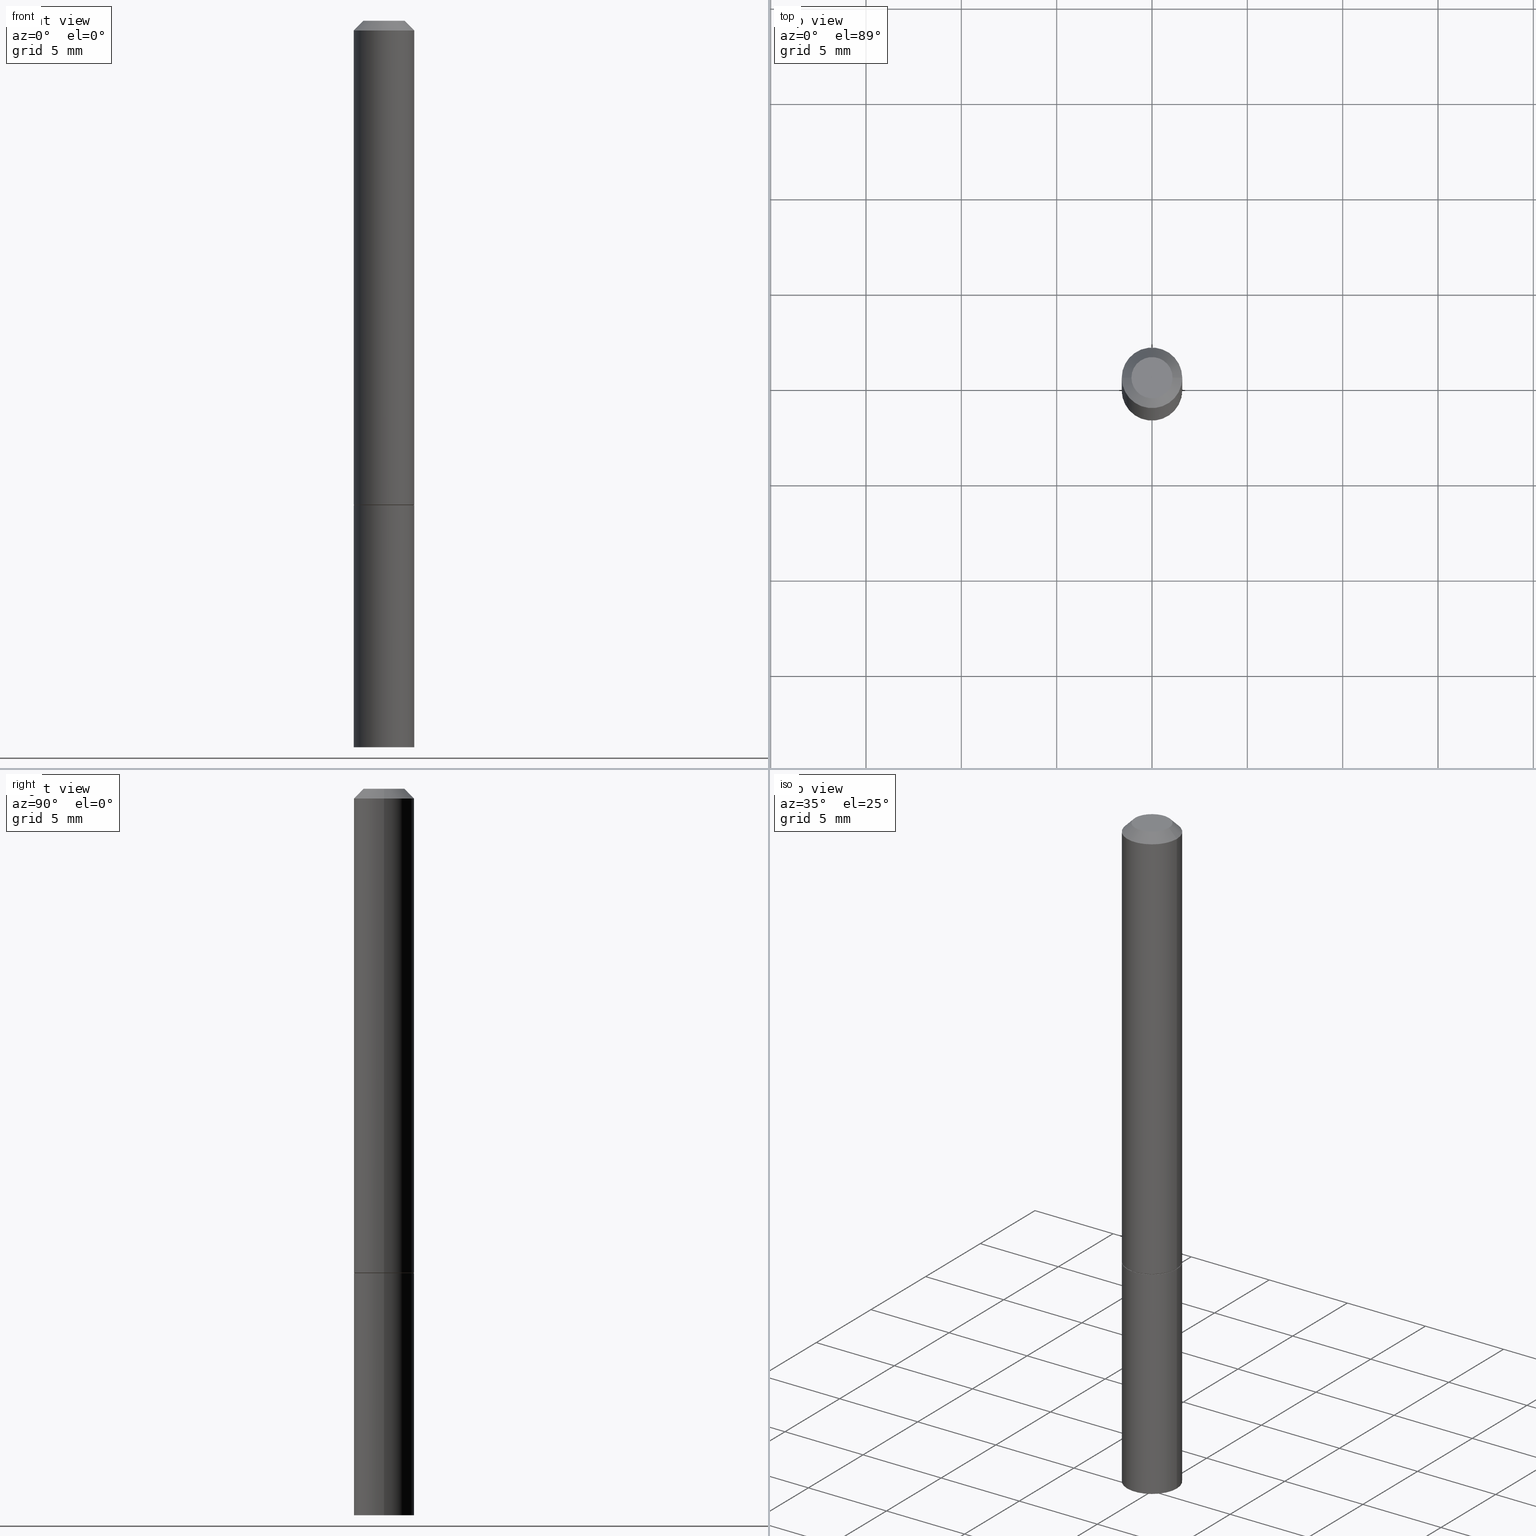
[diagram: canonical four-view strip — front | top / right | iso, engineering-drawing reading convention]
A machine part, canonical four-view strip (front | top / right | iso — engineering-drawing reading convention). The complete STEP part file that produces these views, byte-faithful:
ISO-10303-21;
HEADER;
FILE_DESCRIPTION (( 'STEP AP203' ),
    '1' );
FILE_NAME ('30198.STEP',
    '2023-03-21T20:26:01',
    ( '' ),
    ( '' ),
    'SwSTEP 2.0',
    'SolidWorks 2022',
    '' );
FILE_SCHEMA (( 'CONFIG_CONTROL_DESIGN' ));
ENDSEC;

DATA;
#1 = EDGE_LOOP ( 'NONE', ( #99, #8 ) ) ;
#2 = DIRECTION ( 'NONE',  ( 0.000000000000000000, 0.000000000000000000, 1.000000000000000000 ) ) ;
#3 = ORIENTED_EDGE ( 'NONE', *, *, #133, .T. ) ;
#4 = DIRECTION ( 'NONE',  ( 1.000000000000000000, -6.982962677686269866E-15, 0.000000000000000000 ) ) ;
#5 = ORIENTED_EDGE ( 'NONE', *, *, #77, .F. ) ;
#6 = DIRECTION ( 'NONE',  ( -2.438088387897960049E-29, 3.491481338843145188E-15, 1.000000000000000000 ) ) ;
#7 = VECTOR ( 'NONE', #194, 39.37007874015748143 ) ;
#8 = ORIENTED_EDGE ( 'NONE', *, *, #285, .T. ) ;
#9 = EDGE_CURVE ( 'NONE', #36, #324, #16, .T. ) ;
#10 = EDGE_LOOP ( 'NONE', ( #134, #287, #277, #39 ) ) ;
#11 = DATE_AND_TIME ( #138, #205 ) ;
#12 = DIRECTION ( 'NONE',  ( 2.445468806185136597E-29, -3.491481338843145583E-15, -1.000000000000000000 ) ) ;
#13 = CARTESIAN_POINT ( 'NONE',  ( 0.06250000000000000000, -4.364351673553916694E-16, 3.047610484872459871E-30 ) ) ;
#14 = CONICAL_SURFACE ( 'NONE', #35, 751.2258538476485228, 1.518436449235072372 ) ;
#15 = DATE_TIME_ROLE ( 'classification_date' ) ;
#16 = LINE ( 'NONE', #13, #184 ) ;
#17 = CARTESIAN_POINT ( 'NONE',  ( -0.06250000000000000000, -3.920262463703869855E-15, -1.000000000000000222 ) ) ;
#18 = FACE_OUTER_BOUND ( 'NONE', #234, .T. ) ;
#19 = DIRECTION ( 'NONE',  ( 1.000000000000000000, -6.982962677686269866E-15, 0.000000000000000000 ) ) ;
#20 = VERTEX_POINT ( 'NONE', #140 ) ;
#21 = EDGE_CURVE ( 'NONE', #308, #20, #150, .T. ) ;
#22 = CIRCLE ( 'NONE', #379, 0.06249999999999988898 ) ;
#23 = FACE_OUTER_BOUND ( 'NONE', #1, .T. ) ;
#24 = EDGE_CURVE ( 'NONE', #130, #369, #319, .T. ) ;
#25 = CARTESIAN_POINT ( 'NONE',  ( 3.668203209277704895E-29, -5.237222008264718177E-15, -1.500000000000000222 ) ) ;
#26 = CYLINDRICAL_SURFACE ( 'NONE', #161, 0.06250000000000000000 ) ;
#27 = CC_DESIGN_PERSON_AND_ORGANIZATION_ASSIGNMENT ( #62, #283, ( #29 ) ) ;
#28 = PERSON_AND_ORGANIZATION ( #127, #239 ) ;
#29 = SECURITY_CLASSIFICATION ( '', '', #331 ) ;
#30 =( CONVERSION_BASED_UNIT ( 'INCH', #32 ) LENGTH_UNIT ( ) NAMED_UNIT ( #270 ) );
#31 = EDGE_CURVE ( 'NONE', #253, #79, #291, .T. ) ;
#32 = LENGTH_MEASURE_WITH_UNIT ( LENGTH_MEASURE( 0.02539999999999999897 ), #100 );
#33 = PRODUCT_DEFINITION ( 'UNKNOWN', '', #167, #94 ) ;
#34 = FACE_OUTER_BOUND ( 'NONE', #190, .T. ) ;
#35 = AXIS2_PLACEMENT_3D ( 'NONE', #263, #137, #82 ) ;
#36 = VERTEX_POINT ( 'NONE', #112 ) ;
#37 = MECHANICAL_CONTEXT ( 'NONE', #148, 'mechanical' ) ;
#38 = PRODUCT_DEFINITION_SHAPE ( 'NONE', 'NONE',  #33 ) ;
#39 = ORIENTED_EDGE ( 'NONE', *, *, #328, .F. ) ;
#40 = CARTESIAN_POINT ( 'NONE',  ( 0.06249999999999995143, -4.364351673553913243E-16, 3.047610484872457418E-30 ) ) ;
#41 = VECTOR ( 'NONE', #320, 39.37007874015748143 ) ;
#42 = AXIS2_PLACEMENT_3D ( 'NONE', #84, #207, #323 ) ;
#43 = ORIENTED_EDGE ( 'NONE', *, *, #388, .F. ) ;
#44 = CARTESIAN_POINT ( 'NONE',  ( 0.06250000000000000000, -3.924425024859694639E-15, -0.9990000000000002212 ) ) ;
#45 = ORIENTED_EDGE ( 'NONE', *, *, #131, .F. ) ;
#46 = LINE ( 'NONE', #111, #212 ) ;
#47 = ORIENTED_EDGE ( 'NONE', *, *, #9, .T. ) ;
#48 = ADVANCED_FACE ( 'NONE', ( #196 ), #254, .F. ) ;
#49 = DIRECTION ( 'NONE',  ( 1.000000000000000000, -6.982962677686266711E-15, 4.876176775795935793E-29 ) ) ;
#50 = ORIENTED_EDGE ( 'NONE', *, *, #31, .T. ) ;
#51 = LOCAL_TIME ( 16, 26, 1.000000000000000000, #102 ) ;
#52 = PLANE ( 'NONE',  #355 ) ;
#53 = DIRECTION ( 'NONE',  ( -2.445468806185136597E-29, 3.491481338843145583E-15, 1.000000000000000000 ) ) ;
#54 = ADVANCED_FACE ( 'NONE', ( #18 ), #14, .F. ) ;
#55 = FACE_OUTER_BOUND ( 'NONE', #101, .T. ) ;
#56 = DIRECTION ( 'NONE',  ( 1.000000000000000000, -6.982962677686267499E-15, 4.876176775795935232E-29 ) ) ;
#57 = DIRECTION ( 'NONE',  ( -2.445468806185136597E-29, 3.491481338843145583E-15, 1.000000000000000000 ) ) ;
#58 = CC_DESIGN_APPROVAL ( #271, ( #29 ) ) ;
#59 = FACE_OUTER_BOUND ( 'NONE', #275, .T. ) ;
#60 = DIRECTION ( 'NONE',  ( 1.000000000000000000, -6.982962677686266711E-15, 0.000000000000000000 ) ) ;
#61 = CARTESIAN_POINT ( 'NONE',  ( 2.443023337378951835E-29, -3.487989857504302970E-15, -0.9990000000000002212 ) ) ;
#62 = PERSON_AND_ORGANIZATION ( #127, #239 ) ;
#63 = VECTOR ( 'NONE', #157, 39.37007874015748143 ) ;
#64 = APPROVAL_STATUS ( 'not_yet_approved' ) ;
#65 = EDGE_CURVE ( 'NONE', #369, #253, #258, .T. ) ;
#66 = APPROVAL_STATUS ( 'not_yet_approved' ) ;
#67 = DATE_AND_TIME ( #362, #51 ) ;
#68 = AXIS2_PLACEMENT_3D ( 'NONE', #370, #85, #145 ) ;
#69 = ORIENTED_EDGE ( 'NONE', *, *, #118, .T. ) ;
#70 = APPROVAL_ROLE ( '' ) ;
#71 = ORIENTED_EDGE ( 'NONE', *, *, #24, .T. ) ;
#72 = EDGE_CURVE ( 'NONE', #324, #226, #347, .T. ) ;
#73 = ORIENTED_EDGE ( 'NONE', *, *, #154, .T. ) ;
#74 = FACE_OUTER_BOUND ( 'NONE', #201, .T. ) ;
#75 = AXIS2_PLACEMENT_3D ( 'NONE', #350, #80, #49 ) ;
#76 = ORIENTED_EDGE ( 'NONE', *, *, #154, .F. ) ;
#77 = EDGE_CURVE ( 'NONE', #130, #206, #372, .T. ) ;
#78 = EDGE_CURVE ( 'NONE', #371, #315, #265, .T. ) ;
#79 = VERTEX_POINT ( 'NONE', #164 ) ;
#80 = DIRECTION ( 'NONE',  ( -2.445468806185136597E-29, 3.491481338843145583E-15, 1.000000000000000000 ) ) ;
#81 = ORIENTED_EDGE ( 'NONE', *, *, #78, .T. ) ;
#82 = DIRECTION ( 'NONE',  ( -1.000000000000000000, 6.982962677686266711E-15, 0.000000000000000000 ) ) ;
#83 = CC_DESIGN_APPROVAL ( #358, ( #167 ) ) ;
#84 = CARTESIAN_POINT ( 'NONE',  ( 4.364351673554160748E-16, 0.06249999999999650974, -1.000000000000000444 ) ) ;
#85 = DIRECTION ( 'NONE',  ( -2.445468806185136597E-29, 3.491481338843145583E-15, 1.000000000000000000 ) ) ;
#86 = EDGE_CURVE ( 'NONE', #226, #324, #288, .T. ) ;
#87 = DIRECTION ( 'NONE',  ( -2.445468806185136597E-29, 3.491481338843145583E-15, 1.000000000000000000 ) ) ;
#88 = AXIS2_PLACEMENT_3D ( 'NONE', #174, #292, #329 ) ;
#89 = AXIS2_PLACEMENT_3D ( 'NONE', #123, #2, #126 ) ;
#90 = DIRECTION ( 'NONE',  ( 2.445468806185136597E-29, -3.491481338843145583E-15, -1.000000000000000000 ) ) ;
#91 = ADVANCED_FACE ( 'NONE', ( #160 ), #313, .T. ) ;
#92 = CARTESIAN_POINT ( 'NONE',  ( -0.06149999999999999911, -3.049199102002462361E-15, -1.000000000000000222 ) ) ;
#93 = PERSON_AND_ORGANIZATION ( #127, #239 ) ;
#94 = DESIGN_CONTEXT ( 'detailed design', #195, 'design' ) ;
#95 = CLOSED_SHELL ( 'NONE', ( #104, #48, #54, #365, #374 ) ) ;
#96 = APPROVAL_PERSON_ORGANIZATION ( #344, #271, #70 ) ;
#97 = ORIENTED_EDGE ( 'NONE', *, *, #24, .F. ) ;
#98 = PERSON_AND_ORGANIZATION_ROLE ( 'design_owner' ) ;
#99 = ORIENTED_EDGE ( 'NONE', *, *, #21, .T. ) ;
#100 =( LENGTH_UNIT ( ) NAMED_UNIT ( * ) SI_UNIT ( $, .METRE. ) );
#101 = EDGE_LOOP ( 'NONE', ( #309, #240, #114, #335 ) ) ;
#102 = COORDINATED_UNIVERSAL_TIME_OFFSET ( 5, 0, .BEHIND. ) ;
#103 = VECTOR ( 'NONE', #349, 39.37007874015748854 ) ;
#104 = ADVANCED_FACE ( 'NONE', ( #281 ), #316, .T. ) ;
#105 = SHAPE_DEFINITION_REPRESENTATION ( #38, #175 ) ;
#106 = EDGE_LOOP ( 'NONE', ( #363, #341, #354, #156 ) ) ;
#107 = DIRECTION ( 'NONE',  ( 1.000000000000000000, -6.982962677686262766E-15, 0.000000000000000000 ) ) ;
#108 = EDGE_LOOP ( 'NONE', ( #45, #69, #47, #343 ) ) ;
#109 = CARTESIAN_POINT ( 'NONE',  ( 2.445468806185136877E-29, -3.491481338843145977E-15, -1.000000000000000222 ) ) ;
#110 = CARTESIAN_POINT ( 'NONE',  ( -4.327698760107123316E-19, -5.225785709303660689E-15, -1.496724513794810418 ) ) ;
#111 = CARTESIAN_POINT ( 'NONE',  ( -0.06250000000000000000, 4.440892098500626162E-16, -3.074334431409316114E-30 ) ) ;
#112 = CARTESIAN_POINT ( 'NONE',  ( 0.06249999999999989592, -5.666003133125438899E-15, -1.500000000000000222 ) ) ;
#113 = FACE_OUTER_BOUND ( 'NONE', #311, .T. ) ;
#114 = ORIENTED_EDGE ( 'NONE', *, *, #339, .T. ) ;
#115 = AXIS2_PLACEMENT_3D ( 'NONE', #146, #380, #19 ) ;
#116 = CARTESIAN_POINT ( 'NONE',  ( 0.06250000000000000000, -3.927916506198537646E-15, -1.000000000000000222 ) ) ;
#117 = DIRECTION ( 'NONE',  ( -1.000000000000000000, 6.982962677686265922E-15, -4.876176775795935793E-29 ) ) ;
#118 = EDGE_CURVE ( 'NONE', #315, #36, #327, .T. ) ;
#119 = DIRECTION ( 'NONE',  ( 1.000000000000000000, -6.982962677686266711E-15, 4.876176775795935793E-29 ) ) ;
#120 = CONICAL_SURFACE ( 'NONE', #218, 0.06249999999999988898, 0.7853981633974471688 ) ;
#121 = DIRECTION ( 'NONE',  ( -2.445468806185136597E-29, 3.491481338843145583E-15, 1.000000000000000000 ) ) ;
#122 = PERSON_AND_ORGANIZATION_ROLE ( 'creator' ) ;
#123 = CARTESIAN_POINT ( 'NONE',  ( 0.000000000000000000, 0.000000000000000000, 0.000000000000000000 ) ) ;
#124 = MANIFOLD_SOLID_BREP ( 'Body-Move/Copy2[2]', #204 ) ;
#125 = AXIS2_PLACEMENT_3D ( 'NONE', #317, #163, #56 ) ;
#126 = DIRECTION ( 'NONE',  ( 1.000000000000000000, 0.000000000000000000, 0.000000000000000000 ) ) ;
#127 = PERSON ( 'UNSPECIFIED', 'UNSPECIFIED', 'UNSPECIFIED', ('UNSPECIFIED'), ('UNSPECIFIED'), ('UNSPECIFIED') ) ;
#128 = PERSON_AND_ORGANIZATION_ROLE ( 'design_supplier' ) ;
#129 = VECTOR ( 'NONE', #345, 39.37007874015748854 ) ;
#130 = VERTEX_POINT ( 'NONE', #262 ) ;
#131 = EDGE_CURVE ( 'NONE', #315, #226, #46, .T. ) ;
#132 = ORIENTED_EDGE ( 'NONE', *, *, #77, .T. ) ;
#133 = EDGE_CURVE ( 'NONE', #308, #79, #235, .T. ) ;
#134 = ORIENTED_EDGE ( 'NONE', *, *, #31, .F. ) ;
#135 = APPROVAL_STATUS ( 'not_yet_approved' ) ;
#136 = AXIS2_PLACEMENT_3D ( 'NONE', #166, #139, #107 ) ;
#137 = DIRECTION ( 'NONE',  ( 2.445468806185136597E-29, -3.491481338843145583E-15, -1.000000000000000000 ) ) ;
#138 = CALENDAR_DATE ( 2023, 21, 3 ) ;
#139 = DIRECTION ( 'NONE',  ( -2.445468806185136597E-29, 3.491481338843145583E-15, 1.000000000000000000 ) ) ;
#140 = CARTESIAN_POINT ( 'NONE',  ( 0.04249999999999991979, -3.950909582714362022E-16, 2.418776950579056541E-30 ) ) ;
#141 = CARTESIAN_POINT ( 'NONE',  ( 0.000000000000000000, 0.000000000000000000, 0.000000000000000000 ) ) ;
#142 = PRODUCT_RELATED_PRODUCT_CATEGORY ( 'detail', '', ( #189 ) ) ;
#143 = DIRECTION ( 'NONE',  ( 0.7071067811865715536, -2.468850131082509496E-15, 0.7071067811865232589 ) ) ;
#144 = CARTESIAN_POINT ( 'NONE',  ( -0.04249999999999991979, 3.316907271900968700E-16, -2.197416226880216810E-30 ) ) ;
#145 = DIRECTION ( 'NONE',  ( 1.000000000000000000, -6.982962677686269866E-15, 0.000000000000000000 ) ) ;
#146 = CARTESIAN_POINT ( 'NONE',  ( 2.445468806185136877E-29, -3.491481338843145977E-15, -1.000000000000000222 ) ) ;
#147 = CYLINDRICAL_SURFACE ( 'NONE', #217, 0.06249999999999995143 ) ;
#148 = APPLICATION_CONTEXT ( 'configuration controlled 3d designs of mechanical parts and assemblies' ) ;
#149 = CARTESIAN_POINT ( 'NONE',  ( 0.000000000000000000, 0.000000000000000000, 0.000000000000000000 ) ) ;
#150 = CIRCLE ( 'NONE', #125, 0.04249999999999991979 ) ;
#151 = APPROVAL_PERSON_ORGANIZATION ( #28, #299, #303 ) ;
#152 = DATE_AND_TIME ( #301, #297 ) ;
#153 = APPROVAL_DATE_TIME ( #67, #299 ) ;
#154 = EDGE_CURVE ( 'NONE', #371, #36, #228, .T. ) ;
#155 = AXIS2_PLACEMENT_3D ( 'NONE', #232, #203, #348 ) ;
#156 = ORIENTED_EDGE ( 'NONE', *, *, #9, .F. ) ;
#157 = DIRECTION ( 'NONE',  ( 0.7071067811865466846, -7.319954787623252890E-15, -0.7071067811865483499 ) ) ;
#158 = ORIENTED_EDGE ( 'NONE', *, *, #373, .T. ) ;
#159 = COORDINATED_UNIVERSAL_TIME_OFFSET ( 5, 0, .BEHIND. ) ;
#160 = FACE_OUTER_BOUND ( 'NONE', #181, .T. ) ;
#161 = AXIS2_PLACEMENT_3D ( 'NONE', #141, #121, #382 ) ;
#162 = ORIENTED_EDGE ( 'NONE', *, *, #78, .F. ) ;
#163 = DIRECTION ( 'NONE',  ( -2.445468806185136597E-29, 3.491481338843145583E-15, 1.000000000000000000 ) ) ;
#164 = CARTESIAN_POINT ( 'NONE',  ( -0.06249999999999988898, 3.666055405785279275E-16, -0.02000000000000001429 ) ) ;
#165 = COORDINATED_UNIVERSAL_TIME_OFFSET ( 5, 0, .BEHIND. ) ;
#166 = CARTESIAN_POINT ( 'NONE',  ( 3.668203209277704895E-29, -5.237222008264718177E-15, -1.500000000000000222 ) ) ;
#167 = PRODUCT_DEFINITION_FORMATION_WITH_SPECIFIED_SOURCE ( 'ANY', '', #189, .NOT_KNOWN. ) ;
#168 = ORIENTED_EDGE ( 'NONE', *, *, #328, .T. ) ;
#169 = CARTESIAN_POINT ( 'NONE',  ( 2.445468806185136877E-29, -3.491481338843145977E-15, -1.000000000000000222 ) ) ;
#170 = CARTESIAN_POINT ( 'NONE',  ( 0.06149999999999999911, -3.920933543520851632E-15, -1.000000000000000222 ) ) ;
#171 = PLANE ( 'NONE',  #259 ) ;
#172 = ORIENTED_EDGE ( 'NONE', *, *, #118, .F. ) ;
#173 = DIRECTION ( 'NONE',  ( -2.445468806185136597E-29, 3.491481338843145583E-15, 1.000000000000000000 ) ) ;
#174 = CARTESIAN_POINT ( 'NONE',  ( 0.000000000000000000, 0.000000000000000000, 0.000000000000000000 ) ) ;
#175 = ADVANCED_BREP_SHAPE_REPRESENTATION ( '30198', ( #381, #124, #89 ), #186 ) ;
#176 = DIRECTION ( 'NONE',  ( -2.445468806185136597E-29, 3.491481338843145583E-15, 1.000000000000000000 ) ) ;
#177 = APPROVAL_ROLE ( '' ) ;
#178 = AXIS2_PLACEMENT_3D ( 'NONE', #25, #325, #298 ) ;
#179 = AXIS2_PLACEMENT_3D ( 'NONE', #364, #276, #4 ) ;
#180 =( NAMED_UNIT ( * ) PLANE_ANGLE_UNIT ( ) SI_UNIT ( $, .RADIAN. ) );
#181 = EDGE_LOOP ( 'NONE', ( #278, #187, #132, #318 ) ) ;
#182 = COORDINATED_UNIVERSAL_TIME_OFFSET ( 5, 0, .BEHIND. ) ;
#183 = ORIENTED_EDGE ( 'NONE', *, *, #339, .F. ) ;
#184 = VECTOR ( 'NONE', #284, 39.37007874015748143 ) ;
#185 = DATE_AND_TIME ( #336, #280 ) ;
#186 =( GEOMETRIC_REPRESENTATION_CONTEXT ( 3 ) GLOBAL_UNCERTAINTY_ASSIGNED_CONTEXT ( ( #199 ) ) GLOBAL_UNIT_ASSIGNED_CONTEXT ( ( #30, #180, #222 ) ) REPRESENTATION_CONTEXT ( 'NONE', 'WORKASPACE' ) );
#187 = ORIENTED_EDGE ( 'NONE', *, *, #310, .T. ) ;
#188 = LINE ( 'NONE', #40, #7 ) ;
#189 = PRODUCT ( '30198', '30198', '', ( #37 ) ) ;
#190 = EDGE_LOOP ( 'NONE', ( #71, #366, #351, #5 ) ) ;
#191 = APPROVAL_DATE_TIME ( #11, #271 ) ;
#192 = CONICAL_SURFACE ( 'NONE', #296, 0.06249999999999988898, 0.7853981633974471688 ) ;
#193 = APPROVAL_PERSON_ORGANIZATION ( #306, #358, #177 ) ;
#194 = DIRECTION ( 'NONE',  ( -2.445468806185136877E-29, 3.491481338843145188E-15, 1.000000000000000000 ) ) ;
#195 = APPLICATION_CONTEXT ( 'configuration controlled 3d designs of mechanical parts and assemblies' ) ;
#196 = FACE_OUTER_BOUND ( 'NONE', #312, .T. ) ;
#197 = ORIENTED_EDGE ( 'NONE', *, *, #310, .F. ) ;
#198 = DATE_AND_TIME ( #255, #273 ) ;
#199 = UNCERTAINTY_MEASURE_WITH_UNIT (LENGTH_MEASURE( 1.000000000000000082E-05 ), #30, 'distance_accuracy_value', 'NONE');
#200 = ADVANCED_FACE ( 'NONE', ( #74 ), #52, .F. ) ;
#201 = EDGE_LOOP ( 'NONE', ( #97, #197 ) ) ;
#202 = EDGE_CURVE ( 'NONE', #206, #338, #188, .T. ) ;
#203 = DIRECTION ( 'NONE',  ( -2.445468806185136597E-29, 3.491481338843145583E-15, 1.000000000000000000 ) ) ;
#204 = CLOSED_SHELL ( 'NONE', ( #383, #293, #221, #353, #314, #91, #200, #251 ) ) ;
#205 = LOCAL_TIME ( 16, 26, 1.000000000000000000, #165 ) ;
#206 = VERTEX_POINT ( 'NONE', #44 ) ;
#207 = DIRECTION ( 'NONE',  ( 2.438088387897960049E-29, -3.491481338843145188E-15, -1.000000000000000000 ) ) ;
#208 = DIRECTION ( 'NONE',  ( -2.445468806185136597E-29, 3.491481338843145583E-15, 1.000000000000000000 ) ) ;
#209 = CC_DESIGN_PERSON_AND_ORGANIZATION_ASSIGNMENT ( #219, #98, ( #189 ) ) ;
#210 = DIRECTION ( 'NONE',  ( -2.445468806185136597E-29, 3.491481338843145583E-15, 1.000000000000000000 ) ) ;
#211 = DIRECTION ( 'NONE',  ( 2.445468806185136597E-29, -3.491481338843145583E-15, -1.000000000000000000 ) ) ;
#212 = VECTOR ( 'NONE', #256, 39.37007874015748143 ) ;
#213 = CIRCLE ( 'NONE', #386, 0.06250000000000000000 ) ;
#214 = DIRECTION ( 'NONE',  ( 2.438088387897960049E-29, -3.491481338843145188E-15, -1.000000000000000000 ) ) ;
#215 = CARTESIAN_POINT ( 'NONE',  ( 3.659890908348577137E-29, -5.226218479179707945E-15, -1.496724513794810418 ) ) ;
#216 = CC_DESIGN_DATE_AND_TIME_ASSIGNMENT ( #198, #15, ( #29 ) ) ;
#217 = AXIS2_PLACEMENT_3D ( 'NONE', #242, #57, #119 ) ;
#218 = AXIS2_PLACEMENT_3D ( 'NONE', #376, #90, #300 ) ;
#219 = PERSON_AND_ORGANIZATION ( #127, #239 ) ;
#220 = APPLICATION_PROTOCOL_DEFINITION ( 'international standard', 'config_control_design', 1994, #195 ) ;
#221 = ADVANCED_FACE ( 'NONE', ( #55 ), #192, .T. ) ;
#222 =( NAMED_UNIT ( * ) SI_UNIT ( $, .STERADIAN. ) SOLID_ANGLE_UNIT ( ) );
#223 = PERSON_AND_ORGANIZATION ( #127, #239 ) ;
#224 = CIRCLE ( 'NONE', #260, 0.06249999999999988898 ) ;
#225 = ORIENTED_EDGE ( 'NONE', *, *, #21, .F. ) ;
#226 = VERTEX_POINT ( 'NONE', #17 ) ;
#227 = CC_DESIGN_DATE_AND_TIME_ASSIGNMENT ( #185, #340, ( #33 ) ) ;
#228 = LINE ( 'NONE', #368, #129 ) ;
#229 = CARTESIAN_POINT ( 'NONE',  ( -0.06249999999999995143, 4.440892098500622710E-16, -3.074334431409313661E-30 ) ) ;
#230 = AXIS2_PLACEMENT_3D ( 'NONE', #377, #208, #352 ) ;
#231 = DIRECTION ( 'NONE',  ( 1.000000000000000000, -6.982962677686262766E-15, 0.000000000000000000 ) ) ;
#232 = CARTESIAN_POINT ( 'NONE',  ( 2.445468806185136877E-29, -3.491481338843145977E-15, -1.000000000000000222 ) ) ;
#233 = CC_DESIGN_PERSON_AND_ORGANIZATION_ASSIGNMENT ( #93, #128, ( #167 ) ) ;
#234 = EDGE_LOOP ( 'NONE', ( #76, #81, #289 ) ) ;
#235 = LINE ( 'NONE', #286, #41 ) ;
#236 = CARTESIAN_POINT ( 'NONE',  ( 9.993849256604557359E-28, -1.426856809393487736E-13, -40.86680325395229119 ) ) ;
#237 = PLANE ( 'NONE',  #42 ) ;
#238 = CIRCLE ( 'NONE', #88, 0.04249999999999991979 ) ;
#239 = ORGANIZATION ( 'UNSPECIFIED', 'UNSPECIFIED', '' ) ;
#240 = ORIENTED_EDGE ( 'NONE', *, *, #388, .T. ) ;
#241 = CC_DESIGN_PERSON_AND_ORGANIZATION_ASSIGNMENT ( #387, #122, ( #167 ) ) ;
#242 = CARTESIAN_POINT ( 'NONE',  ( 0.000000000000000000, 0.000000000000000000, 0.000000000000000000 ) ) ;
#243 = CARTESIAN_POINT ( 'NONE',  ( 0.06249999999999988898, -4.986107516375829362E-16, -0.02000000000000001429 ) ) ;
#244 = FACE_OUTER_BOUND ( 'NONE', #305, .T. ) ;
#245 = VECTOR ( 'NONE', #143, 39.37007874015748854 ) ;
#246 = CC_DESIGN_SECURITY_CLASSIFICATION ( #29, ( #167 ) ) ;
#247 = DIRECTION ( 'NONE',  ( -1.000000000000000000, 6.982962677686266711E-15, 0.000000000000000000 ) ) ;
#248 = CIRCLE ( 'NONE', #178, 0.06250000000000000000 ) ;
#249 = CC_DESIGN_APPROVAL ( #299, ( #33 ) ) ;
#250 = EDGE_CURVE ( 'NONE', #36, #315, #248, .T. ) ;
#251 = ADVANCED_FACE ( 'NONE', ( #23 ), #171, .F. ) ;
#252 = LINE ( 'NONE', #304, #63 ) ;
#253 = VERTEX_POINT ( 'NONE', #361 ) ;
#254 = CONICAL_SURFACE ( 'NONE', #390, 751.2258538476485228, 1.518436449235072372 ) ;
#255 = CALENDAR_DATE ( 2023, 21, 3 ) ;
#256 = DIRECTION ( 'NONE',  ( -2.445468806185136877E-29, 3.491481338843145188E-15, 1.000000000000000000 ) ) ;
#257 = CC_DESIGN_PERSON_AND_ORGANIZATION_ASSIGNMENT ( #223, #334, ( #33 ) ) ;
#258 = LINE ( 'NONE', #375, #302 ) ;
#259 = AXIS2_PLACEMENT_3D ( 'NONE', #326, #214, #117 ) ;
#260 = AXIS2_PLACEMENT_3D ( 'NONE', #384, #173, #60 ) ;
#261 = DIRECTION ( 'NONE',  ( -1.000000000000000000, 6.982962677686266711E-15, 0.000000000000000000 ) ) ;
#262 = CARTESIAN_POINT ( 'NONE',  ( 0.06149999999999999911, -3.920933543520851632E-15, -1.000000000000000222 ) ) ;
#263 = CARTESIAN_POINT ( 'NONE',  ( 9.993849256604557359E-28, -1.426856809393487736E-13, -40.86680325395229119 ) ) ;
#264 = DIRECTION ( 'NONE',  ( 1.000000000000000000, -6.982962677686270655E-15, 0.000000000000000000 ) ) ;
#265 = LINE ( 'NONE', #110, #103 ) ;
#266 = CYLINDRICAL_SURFACE ( 'NONE', #333, 0.06249999999999995143 ) ;
#267 = AXIS2_PLACEMENT_3D ( 'NONE', #272, #87, #268 ) ;
#268 = DIRECTION ( 'NONE',  ( 1.000000000000000000, -6.982962677686270655E-15, 0.000000000000000000 ) ) ;
#269 = FACE_OUTER_BOUND ( 'NONE', #10, .T. ) ;
#270 = DIMENSIONAL_EXPONENTS ( 1.000000000000000000, 0.000000000000000000, 0.000000000000000000, 0.000000000000000000, 0.000000000000000000, 0.000000000000000000, 0.000000000000000000 ) ;
#271 = APPROVAL ( #135, 'UNSPECIFIED' ) ;
#272 = CARTESIAN_POINT ( 'NONE',  ( 2.443023337378951835E-29, -3.487989857504302970E-15, -0.9990000000000002212 ) ) ;
#273 = LOCAL_TIME ( 16, 26, 1.000000000000000000, #159 ) ;
#274 = APPROVAL_DATE_TIME ( #152, #358 ) ;
#275 = EDGE_LOOP ( 'NONE', ( #158, #50, #183, #357 ) ) ;
#276 = DIRECTION ( 'NONE',  ( -2.445468806185136597E-29, 3.491481338843145583E-15, 1.000000000000000000 ) ) ;
#277 = ORIENTED_EDGE ( 'NONE', *, *, #202, .T. ) ;
#278 = ORIENTED_EDGE ( 'NONE', *, *, #65, .F. ) ;
#279 = AXIS2_PLACEMENT_3D ( 'NONE', #109, #53, #231 ) ;
#280 = LOCAL_TIME ( 16, 26, 1.000000000000000000, #389 ) ;
#281 = FACE_OUTER_BOUND ( 'NONE', #106, .T. ) ;
#282 = ORIENTED_EDGE ( 'NONE', *, *, #86, .T. ) ;
#283 = PERSON_AND_ORGANIZATION_ROLE ( 'classification_officer' ) ;
#284 = DIRECTION ( 'NONE',  ( -2.445468806185136877E-29, 3.491481338843145188E-15, 1.000000000000000000 ) ) ;
#285 = EDGE_CURVE ( 'NONE', #20, #308, #238, .T. ) ;
#286 = CARTESIAN_POINT ( 'NONE',  ( -0.06249999999999988898, 3.666055405785279275E-16, -0.02000000000000001429 ) ) ;
#287 = ORIENTED_EDGE ( 'NONE', *, *, #322, .T. ) ;
#288 = CIRCLE ( 'NONE', #230, 0.06250000000000000000 ) ;
#289 = ORIENTED_EDGE ( 'NONE', *, *, #250, .F. ) ;
#290 = DIRECTION ( 'NONE',  ( -2.445468806185136597E-29, 3.491481338843145583E-15, 1.000000000000000000 ) ) ;
#291 = LINE ( 'NONE', #229, #378 ) ;
#292 = DIRECTION ( 'NONE',  ( -2.445468806185136597E-29, 3.491481338843145583E-15, 1.000000000000000000 ) ) ;
#293 = ADVANCED_FACE ( 'NONE', ( #59 ), #266, .T. ) ;
#294 = ORIENTED_EDGE ( 'NONE', *, *, #72, .T. ) ;
#295 = FACE_OUTER_BOUND ( 'NONE', #108, .T. ) ;
#296 = AXIS2_PLACEMENT_3D ( 'NONE', #356, #211, #247 ) ;
#297 = LOCAL_TIME ( 16, 26, 1.000000000000000000, #182 ) ;
#298 = DIRECTION ( 'NONE',  ( 1.000000000000000000, -6.982962677686262766E-15, 0.000000000000000000 ) ) ;
#299 = APPROVAL ( #64, 'UNSPECIFIED' ) ;
#300 = DIRECTION ( 'NONE',  ( -1.000000000000000000, 6.982962677686266711E-15, 0.000000000000000000 ) ) ;
#301 = CALENDAR_DATE ( 2023, 21, 3 ) ;
#302 = VECTOR ( 'NONE', #321, 39.37007874015748854 ) ;
#303 = APPROVAL_ROLE ( '' ) ;
#304 = CARTESIAN_POINT ( 'NONE',  ( 0.06249999999999988898, -4.986107516375829362E-16, -0.02000000000000001429 ) ) ;
#305 = EDGE_LOOP ( 'NONE', ( #43, #225, #3, #168 ) ) ;
#306 = PERSON_AND_ORGANIZATION ( #127, #239 ) ;
#307 = CIRCLE ( 'NONE', #115, 0.06149999999999999911 ) ;
#308 = VERTEX_POINT ( 'NONE', #144 ) ;
#309 = ORIENTED_EDGE ( 'NONE', *, *, #285, .F. ) ;
#310 = EDGE_CURVE ( 'NONE', #369, #130, #307, .T. ) ;
#311 = EDGE_LOOP ( 'NONE', ( #294, #282 ) ) ;
#312 = EDGE_LOOP ( 'NONE', ( #162, #73, #172 ) ) ;
#313 = CONICAL_SURFACE ( 'NONE', #155, 0.06149999999999999911, 0.7853981633974824739 ) ;
#314 = ADVANCED_FACE ( 'NONE', ( #269 ), #147, .T. ) ;
#315 = VERTEX_POINT ( 'NONE', #360 ) ;
#316 = CYLINDRICAL_SURFACE ( 'NONE', #75, 0.06250000000000000000 ) ;
#317 = CARTESIAN_POINT ( 'NONE',  ( 0.000000000000000000, 0.000000000000000000, 0.000000000000000000 ) ) ;
#318 = ORIENTED_EDGE ( 'NONE', *, *, #322, .F. ) ;
#319 = CIRCLE ( 'NONE', #68, 0.06149999999999999911 ) ;
#320 = DIRECTION ( 'NONE',  ( -0.7071067811865466846, 2.468850131082247989E-15, -0.7071067811865483499 ) ) ;
#321 = DIRECTION ( 'NONE',  ( -0.7071067811865715536, 7.493145998870439357E-15, 0.7071067811865232589 ) ) ;
#322 = EDGE_CURVE ( 'NONE', #253, #206, #332, .T. ) ;
#323 = DIRECTION ( 'NONE',  ( -1.000000000000000000, 6.982962677686265922E-15, -4.876176775795935793E-29 ) ) ;
#324 = VERTEX_POINT ( 'NONE', #116 ) ;
#325 = DIRECTION ( 'NONE',  ( -2.445468806185136597E-29, 3.491481338843145583E-15, 1.000000000000000000 ) ) ;
#326 = CARTESIAN_POINT ( 'NONE',  ( 2.967759138016657633E-16, 0.04249999999999991979, -1.483879569008334240E-16 ) ) ;
#327 = CIRCLE ( 'NONE', #136, 0.06250000000000000000 ) ;
#328 = EDGE_CURVE ( 'NONE', #79, #338, #224, .T. ) ;
#329 = DIRECTION ( 'NONE',  ( 1.000000000000000000, -6.982962677686267499E-15, 4.876176775795935232E-29 ) ) ;
#330 = CARTESIAN_POINT ( 'NONE',  ( 4.890937612370275786E-31, -6.982962677686296539E-17, -0.02000000000000001429 ) ) ;
#331 = SECURITY_CLASSIFICATION_LEVEL ( 'unclassified' ) ;
#332 = CIRCLE ( 'NONE', #267, 0.06250000000000000000 ) ;
#333 = AXIS2_PLACEMENT_3D ( 'NONE', #149, #210, #359 ) ;
#334 = PERSON_AND_ORGANIZATION_ROLE ( 'creator' ) ;
#335 = ORIENTED_EDGE ( 'NONE', *, *, #133, .F. ) ;
#336 = CALENDAR_DATE ( 2023, 21, 3 ) ;
#337 = APPLICATION_PROTOCOL_DEFINITION ( 'international standard', 'config_control_design', 1994, #148 ) ;
#338 = VERTEX_POINT ( 'NONE', #243 ) ;
#339 = EDGE_CURVE ( 'NONE', #338, #79, #22, .T. ) ;
#340 = DATE_TIME_ROLE ( 'creation_date' ) ;
#341 = ORIENTED_EDGE ( 'NONE', *, *, #131, .T. ) ;
#342 = DIRECTION ( 'NONE',  ( 1.000000000000000000, -6.982962677686265922E-15, 4.876176775795935793E-29 ) ) ;
#343 = ORIENTED_EDGE ( 'NONE', *, *, #86, .F. ) ;
#344 = PERSON_AND_ORGANIZATION ( #127, #239 ) ;
#345 = DIRECTION ( 'NONE',  ( 0.9986295347545742773, -7.033825938272001856E-15, -0.05233595624293820026 ) ) ;
#346 = DIRECTION ( 'NONE',  ( -2.445468806185136877E-29, 3.491481338843145188E-15, 1.000000000000000000 ) ) ;
#347 = CIRCLE ( 'NONE', #279, 0.06250000000000000000 ) ;
#348 = DIRECTION ( 'NONE',  ( 1.000000000000000000, -6.982962677686269866E-15, 0.000000000000000000 ) ) ;
#349 = DIRECTION ( 'NONE',  ( -0.9986295347545742773, 6.790662755453662155E-15, -0.05233595624293820026 ) ) ;
#350 = CARTESIAN_POINT ( 'NONE',  ( 0.000000000000000000, 0.000000000000000000, 0.000000000000000000 ) ) ;
#351 = ORIENTED_EDGE ( 'NONE', *, *, #373, .F. ) ;
#352 = DIRECTION ( 'NONE',  ( 1.000000000000000000, -6.982962677686262766E-15, 0.000000000000000000 ) ) ;
#353 = ADVANCED_FACE ( 'NONE', ( #244 ), #120, .T. ) ;
#354 = ORIENTED_EDGE ( 'NONE', *, *, #72, .F. ) ;
#355 = AXIS2_PLACEMENT_3D ( 'NONE', #169, #6, #342 ) ;
#356 = CARTESIAN_POINT ( 'NONE',  ( 4.890937612370275786E-31, -6.982962677686296539E-17, -0.02000000000000001429 ) ) ;
#357 = ORIENTED_EDGE ( 'NONE', *, *, #202, .F. ) ;
#358 = APPROVAL ( #66, 'UNSPECIFIED' ) ;
#359 = DIRECTION ( 'NONE',  ( 1.000000000000000000, -6.982962677686266711E-15, 4.876176775795935793E-29 ) ) ;
#360 = CARTESIAN_POINT ( 'NONE',  ( -0.06249999999999989592, -4.800786840909328085E-15, -1.500000000000000222 ) ) ;
#361 = CARTESIAN_POINT ( 'NONE',  ( -0.06250000000000001388, -1.334820532290518743E-15, -0.9990000000000002212 ) ) ;
#362 = CALENDAR_DATE ( 2023, 21, 3 ) ;
#363 = ORIENTED_EDGE ( 'NONE', *, *, #250, .T. ) ;
#364 = CARTESIAN_POINT ( 'NONE',  ( 2.445468806185136877E-29, -3.491481338843145977E-15, -1.000000000000000222 ) ) ;
#365 = ADVANCED_FACE ( 'NONE', ( #295 ), #26, .T. ) ;
#366 = ORIENTED_EDGE ( 'NONE', *, *, #65, .T. ) ;
#367 = CONICAL_SURFACE ( 'NONE', #179, 0.06149999999999999911, 0.7853981633974824739 ) ;
#368 = CARTESIAN_POINT ( 'NONE',  ( 4.327698760839161584E-19, -5.225785709303660689E-15, -1.496724513794810418 ) ) ;
#369 = VERTEX_POINT ( 'NONE', #92 ) ;
#370 = CARTESIAN_POINT ( 'NONE',  ( 2.445468806185136877E-29, -3.491481338843145977E-15, -1.000000000000000222 ) ) ;
#371 = VERTEX_POINT ( 'NONE', #215 ) ;
#372 = LINE ( 'NONE', #170, #245 ) ;
#373 = EDGE_CURVE ( 'NONE', #206, #253, #213, .T. ) ;
#374 = ADVANCED_FACE ( 'NONE', ( #113 ), #237, .F. ) ;
#375 = CARTESIAN_POINT ( 'NONE',  ( -0.06149999999999999911, -3.054497556350684369E-15, -1.000000000000000222 ) ) ;
#376 = CARTESIAN_POINT ( 'NONE',  ( 4.890937612370275786E-31, -6.982962677686296539E-17, -0.02000000000000001429 ) ) ;
#377 = CARTESIAN_POINT ( 'NONE',  ( 2.445468806185136877E-29, -3.491481338843145977E-15, -1.000000000000000222 ) ) ;
#378 = VECTOR ( 'NONE', #346, 39.37007874015748143 ) ;
#379 = AXIS2_PLACEMENT_3D ( 'NONE', #330, #176, #385 ) ;
#380 = DIRECTION ( 'NONE',  ( -2.445468806185136597E-29, 3.491481338843145583E-15, 1.000000000000000000 ) ) ;
#381 = MANIFOLD_SOLID_BREP ( 'Body-Move/Copy2[1]', #95 ) ;
#382 = DIRECTION ( 'NONE',  ( 1.000000000000000000, -6.982962677686266711E-15, 4.876176775795935793E-29 ) ) ;
#383 = ADVANCED_FACE ( 'NONE', ( #34 ), #367, .T. ) ;
#384 = CARTESIAN_POINT ( 'NONE',  ( 4.890937612370275786E-31, -6.982962677686296539E-17, -0.02000000000000001429 ) ) ;
#385 = DIRECTION ( 'NONE',  ( 1.000000000000000000, -6.982962677686266711E-15, 0.000000000000000000 ) ) ;
#386 = AXIS2_PLACEMENT_3D ( 'NONE', #61, #290, #264 ) ;
#387 = PERSON_AND_ORGANIZATION ( #127, #239 ) ;
#388 = EDGE_CURVE ( 'NONE', #20, #338, #252, .T. ) ;
#389 = COORDINATED_UNIVERSAL_TIME_OFFSET ( 5, 0, .BEHIND. ) ;
#390 = AXIS2_PLACEMENT_3D ( 'NONE', #236, #12, #261 ) ;
ENDSEC;
END-ISO-10303-21;
